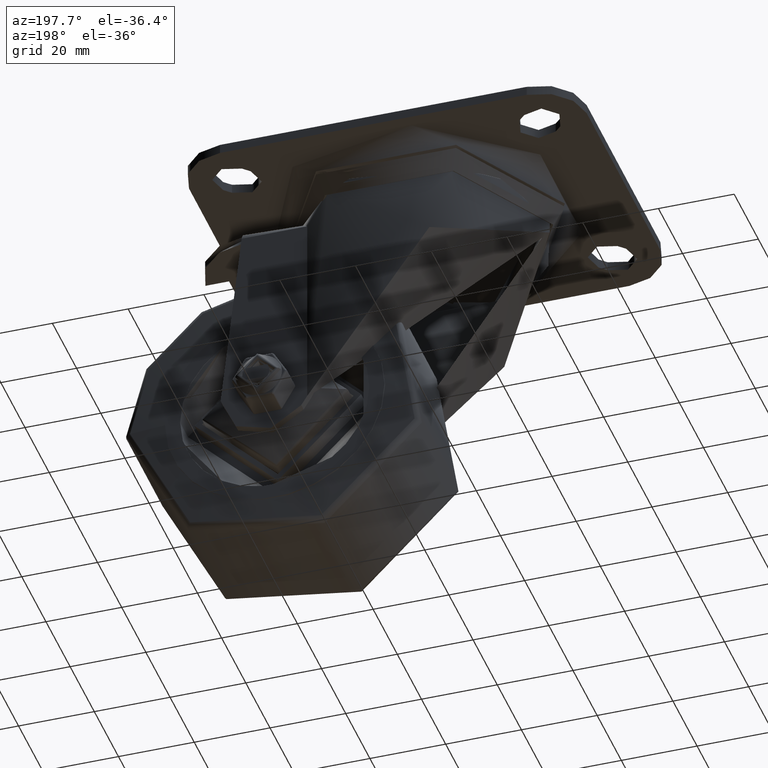
[diagram: clean part render]
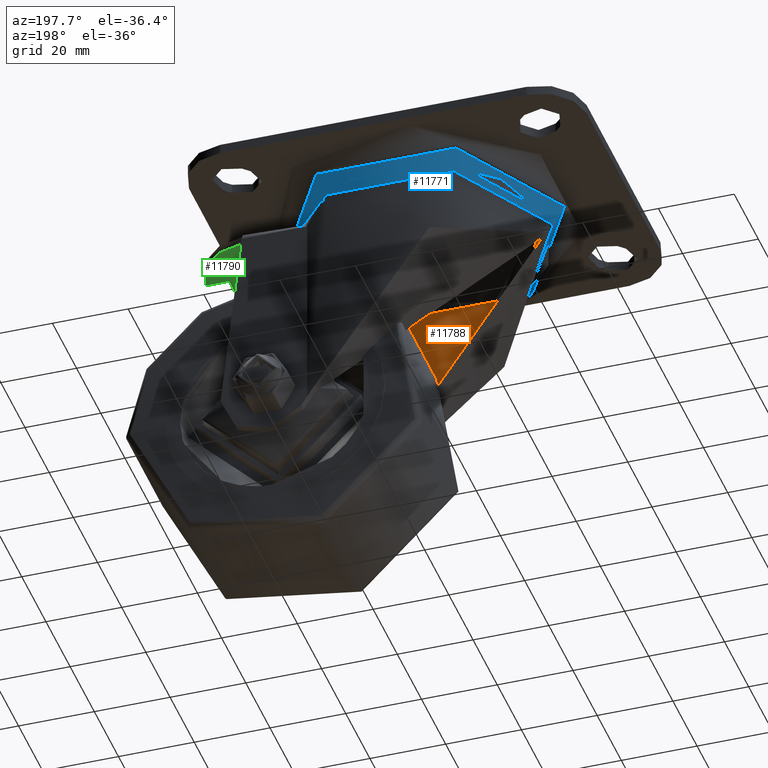
[diagram: same view with three faces highlighted in distinct colors, each labeled with its STEP entity id]
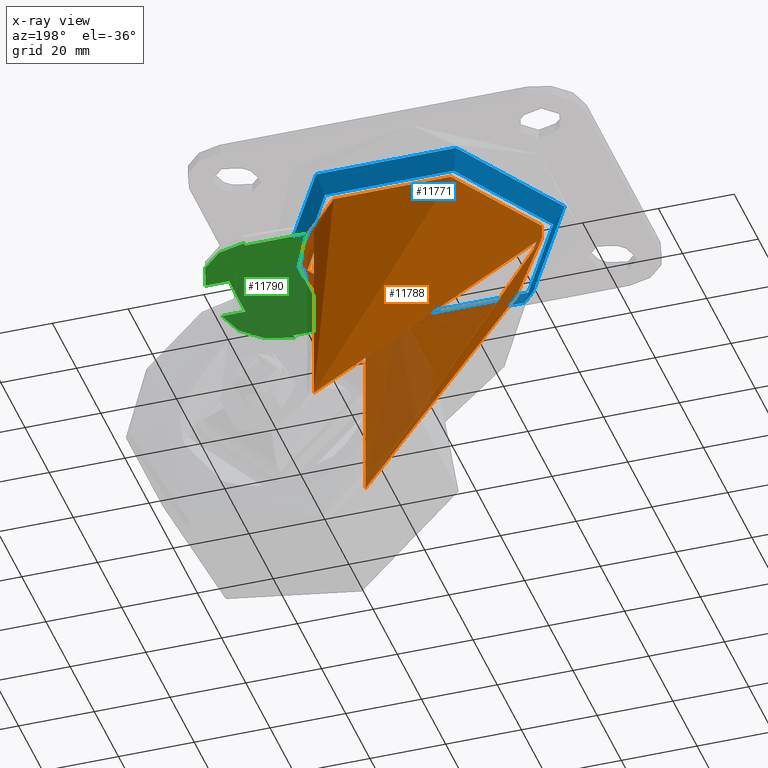
[diagram: x-ray of the same camera — body ghosted, the three highlighted faces saturated]
A machine part, auxiliary view with three faces highlighted in distinct colors.
The next image is the same camera in x-ray (body ghosted, the three faces saturated) — at least one of them is partly hidden behind the body in this view.
Their STEP definitions:

[orange] entity #11788 — the highlighted cylindrical surface (bore or boss wall) has radius 31 mm, axis along (0, 0, 1).
#522=B_SPLINE_CURVE_WITH_KNOTS('',3,(#21549,#21550,#21551,#21552,#21553,
#21554),.UNSPECIFIED.,.F.,.F.,(4,1,1,4),(-0.366304927231957,-0.261646376594255,
-0.156987825956553,0.),.UNSPECIFIED.);
#525=B_SPLINE_CURVE_WITH_KNOTS('',3,(#21614,#21615,#21616,#21617,#21618,
#21619),.UNSPECIFIED.,.F.,.F.,(4,1,1,4),(-0.366301003545455,-0.156986144376624,
-0.104657429584416,0.),.UNSPECIFIED.);
#527=B_SPLINE_CURVE_WITH_KNOTS('',3,(#21643,#21644,#21645,#21646,#21647,
#21648,#21649,#21650,#21651,#21652,#21653,#21654,#21655,#21656,#21657,#21658,
#21659,#21660,#21661,#21662,#21663,#21664,#21665,#21666,#21667,#21668,#21669,
#21670,#21671,#21672,#21673,#21674,#21675,#21676,#21677,#21678,#21679,#21680,
#21681,#21682,#21683,#21684,#21685,#21686,#21687,#21688,#21689,#21690,#21691,
#21692),.UNSPECIFIED.,.F.,.F.,(4,2,2,2,2,2,2,2,2,2,2,2,2,2,2,2,2,2,2,2,
2,2,2,2,4),(2.79800494160239,3.45327079331287,4.41356335842869,5.37385592354451,
6.33414848866034,7.10178908057205,7.86942967248377,8.63707026439549,9.40471085630721,
9.97575357719239,10.5467962980776,11.1178390189627,11.6888817398479,12.2599244607331,
12.8309671816183,13.4020099025035,13.9730526233886,14.7406932153004,15.5083338072121,
16.2759743991238,17.0436149910355,18.0039075561513,18.9642001212672,19.924492686383,
20.579758635661),.UNSPECIFIED.);
#1924=FACE_OUTER_BOUND('',#2751,.T.);
#2751=EDGE_LOOP('',(#9864,#9865,#9866,#9867,#9868,#9869,#9870,#9871,#9872,
#9873,#9874));
#3478=LINE('',#21565,#4211);
#3481=LINE('',#21580,#4214);
#3484=LINE('',#21639,#4217);
#4211=VECTOR('',#15094,10.);
#4214=VECTOR('',#15101,10.);
#4217=VECTOR('',#15120,31.);
#4797=CIRCLE('',#12911,31.);
#4798=CIRCLE('',#12912,31.);
#4800=CIRCLE('',#12917,31.);
#4801=CIRCLE('',#12918,31.);
#5681=VERTEX_POINT('',#21546);
#5682=VERTEX_POINT('',#21548);
#5684=VERTEX_POINT('',#21558);
#5685=VERTEX_POINT('',#21568);
#5688=VERTEX_POINT('',#21578);
#5690=VERTEX_POINT('',#21612);
#5691=VERTEX_POINT('',#21627);
#5694=VERTEX_POINT('',#21638);
#5695=VERTEX_POINT('',#21640);
#7126=EDGE_CURVE('',#5681,#5682,#522,.T.);
#7129=EDGE_CURVE('',#5684,#5681,#3478,.T.);
#7134=EDGE_CURVE('',#5688,#5685,#3481,.T.);
#7136=EDGE_CURVE('',#5690,#5688,#525,.T.);
#7138=EDGE_CURVE('',#5682,#5691,#4797,.T.);
#7139=EDGE_CURVE('',#5691,#5690,#4798,.T.);
#7144=EDGE_CURVE('',#5691,#5694,#3484,.T.);
#7145=EDGE_CURVE('',#5695,#5694,#4800,.T.);
#7146=EDGE_CURVE('',#5694,#5695,#4801,.T.);
#7147=EDGE_CURVE('',#5684,#5685,#527,.F.);
#9864=ORIENTED_EDGE('',*,*,#7134,.F.);
#9865=ORIENTED_EDGE('',*,*,#7136,.F.);
#9866=ORIENTED_EDGE('',*,*,#7139,.F.);
#9867=ORIENTED_EDGE('',*,*,#7144,.T.);
#9868=ORIENTED_EDGE('',*,*,#7145,.F.);
#9869=ORIENTED_EDGE('',*,*,#7146,.F.);
#9870=ORIENTED_EDGE('',*,*,#7144,.F.);
#9871=ORIENTED_EDGE('',*,*,#7138,.F.);
#9872=ORIENTED_EDGE('',*,*,#7126,.F.);
#9873=ORIENTED_EDGE('',*,*,#7129,.F.);
#9874=ORIENTED_EDGE('',*,*,#7147,.T.);
#11238=CYLINDRICAL_SURFACE('',#12916,31.);
#11788=ADVANCED_FACE('',(#1924),#11238,.F.);
#12911=AXIS2_PLACEMENT_3D('',#21628,#15106,#15107);
#12912=AXIS2_PLACEMENT_3D('',#21629,#15108,#15109);
#12916=AXIS2_PLACEMENT_3D('',#21637,#15118,#15119);
#12917=AXIS2_PLACEMENT_3D('',#21641,#15121,#15122);
#12918=AXIS2_PLACEMENT_3D('',#21642,#15123,#15124);
#15094=DIRECTION('',(0.,0.,1.));
#15101=DIRECTION('',(0.,0.,-1.));
#15106=DIRECTION('center_axis',(0.,0.,1.));
#15107=DIRECTION('ref_axis',(0.999768729678008,-0.0215055145956323,0.));
#15108=DIRECTION('center_axis',(0.,0.,1.));
#15109=DIRECTION('ref_axis',(0.999768729678008,-0.0215055145956323,0.));
#15118=DIRECTION('center_axis',(0.,0.,1.));
#15119=DIRECTION('ref_axis',(-1.,0.,0.));
#15120=DIRECTION('',(0.,0.,1.));
#15121=DIRECTION('center_axis',(0.,0.,-1.));
#15122=DIRECTION('ref_axis',(-1.,0.,0.));
#15123=DIRECTION('center_axis',(0.,0.,-1.));
#15124=DIRECTION('ref_axis',(-1.,0.,0.));
#21546=CARTESIAN_POINT('',(22.5117156998306,-21.3125,-16.5));
#21548=CARTESIAN_POINT('',(24.1993672437938,-19.375,-14.5));
#21549=CARTESIAN_POINT('Ctrl Pts',(22.5117156998306,-21.3125,-16.5));
#21550=CARTESIAN_POINT('Ctrl Pts',(22.5117156998306,-21.3125,-16.1511381645411));
#21551=CARTESIAN_POINT('Ctrl Pts',(22.6939761918626,-21.1214889516361,-15.4716051280992));
#21552=CARTESIAN_POINT('Ctrl Pts',(23.3377848616503,-20.4157894463129,-14.7046781625733));
#21553=CARTESIAN_POINT('Ctrl Pts',(23.8825298346367,-19.7707297972008,-14.5));
#21554=CARTESIAN_POINT('Ctrl Pts',(24.1993672437938,-19.375,-14.5));
#21558=CARTESIAN_POINT('',(22.5117156998306,-21.3125,-66.6746183290521));
#21565=CARTESIAN_POINT('',(22.5117156998306,-21.3125,-76.5));
#21568=CARTESIAN_POINT('',(22.5117156998306,21.3125,-66.6746183290522));
#21578=CARTESIAN_POINT('',(22.5117156998306,21.3125,-16.5));
#21580=CARTESIAN_POINT('',(22.5117156998306,21.3125,-76.5));
#21612=CARTESIAN_POINT('',(24.1993672437923,19.3750000000019,-14.5));
#21614=CARTESIAN_POINT('Ctrl Pts',(24.1993672437923,19.3750000000019,-14.5));
#21615=CARTESIAN_POINT('Ctrl Pts',(23.776921890001,19.9026340777737,-14.5000000000005));
#21616=CARTESIAN_POINT('Ctrl Pts',(23.2162639399819,20.5517197214548,-14.7706150732884));
#21617=CARTESIAN_POINT('Ctrl Pts',(22.6449212854271,21.1723927482741,-15.6408814520903));
#21618=CARTESIAN_POINT('Ctrl Pts',(22.5117156998306,21.3125,-16.1511419013852));
#21619=CARTESIAN_POINT('Ctrl Pts',(22.5117156998307,21.3125,-16.5));
#21627=CARTESIAN_POINT('',(31.,3.7964050773568E-15,-14.5));
#21628=CARTESIAN_POINT('Origin',(6.93889390390723E-15,0.,-14.5));
#21629=CARTESIAN_POINT('Origin',(6.93889390390723E-15,0.,-14.5));
#21637=CARTESIAN_POINT('Origin',(6.93889390390723E-15,0.,-76.5));
#21638=CARTESIAN_POINT('',(31.,-3.79640507735679E-15,-11.5));
#21639=CARTESIAN_POINT('',(31.,3.7964050773568E-15,-76.5));
#21640=CARTESIAN_POINT('',(-31.,-3.7964050773568E-15,-11.5));
#21641=CARTESIAN_POINT('Origin',(6.93889390390723E-15,0.,-11.5));
#21642=CARTESIAN_POINT('Origin',(6.93889390390723E-15,0.,-11.5));
#21643=CARTESIAN_POINT('Ctrl Pts',(22.5117156998306,21.3125,-66.6746183290522));
#21644=CARTESIAN_POINT('Ctrl Pts',(21.4532500960343,22.4305235425554,-65.0578062259421));
#21645=CARTESIAN_POINT('Ctrl Pts',(20.3111709516999,23.4699847966442,-63.3752417908497));
#21646=CARTESIAN_POINT('Ctrl Pts',(17.3123760571425,25.814751879271,-59.1400530999394));
#21647=CARTESIAN_POINT('Ctrl Pts',(15.3696232056898,27.0182382177668,-56.5474709480143));
#21648=CARTESIAN_POINT('Ctrl Pts',(11.2464070101123,28.9780735853506,-51.3851666750787));
#21649=CARTESIAN_POINT('Ctrl Pts',(9.06490452145309,29.7339230013996,-48.8144676786929));
#21650=CARTESIAN_POINT('Ctrl Pts',(4.58253710361373,30.7453902973672,-43.8474473419471));
#21651=CARTESIAN_POINT('Ctrl Pts',(2.28155620506681,31.,-41.4510254058555));
#21652=CARTESIAN_POINT('Ctrl Pts',(-1.823834963802,31.,-37.4111248340499));
#21653=CARTESIAN_POINT('Ctrl Pts',(-3.76817083024062,30.8369706647622,-35.5828080243421));
#21654=CARTESIAN_POINT('Ctrl Pts',(-7.75595412377786,30.0826037267597,-32.0149506508458));
#21655=CARTESIAN_POINT('Ctrl Pts',(-9.79932559745162,29.4908328732966,-30.2754168117049));
#21656=CARTESIAN_POINT('Ctrl Pts',(-13.8235094850245,27.8324753238633,-27.0071525129987));
#21657=CARTESIAN_POINT('Ctrl Pts',(-15.8066244800044,26.7643932521718,-25.476139402578));
#21658=CARTESIAN_POINT('Ctrl Pts',(-19.5467716360171,24.168281751834,-22.7059224012732));
#21659=CARTESIAN_POINT('Ctrl Pts',(-21.3033227315613,22.6399713352705,-21.4663323800295));
#21660=CARTESIAN_POINT('Ctrl Pts',(-24.0387504732261,19.6501052521614,-19.5981626258782));
#21661=CARTESIAN_POINT('Ctrl Pts',(-25.1643939714848,18.2017056867479,-18.8519167331473));
#21662=CARTESIAN_POINT('Ctrl Pts',(-27.1832706284687,15.0206062576484,-17.5425584417405));
#21663=CARTESIAN_POINT('Ctrl Pts',(-28.0762173349252,13.2878704630561,-16.9790917017134));
#21664=CARTESIAN_POINT('Ctrl Pts',(-29.5262156878812,9.6459410355561,-16.0767538961647));
#21665=CARTESIAN_POINT('Ctrl Pts',(-30.0845852287592,7.73305235219514,-15.7366648454094));
#21666=CARTESIAN_POINT('Ctrl Pts',(-30.8215607945174,3.86183344246917,-15.289866114576));
#21667=CARTESIAN_POINT('Ctrl Pts',(-31.,1.90347573628393,-15.1831193844125));
#21668=CARTESIAN_POINT('Ctrl Pts',(-31.,-1.90347573628393,-15.1831193844125));
#21669=CARTESIAN_POINT('Ctrl Pts',(-30.8215607945174,-3.86183344246917,
-15.289866114576));
#21670=CARTESIAN_POINT('Ctrl Pts',(-30.0845852287592,-7.73305235219514,
-15.7366648454094));
#21671=CARTESIAN_POINT('Ctrl Pts',(-29.5262156878812,-9.6459410355561,-16.0767538961647));
#21672=CARTESIAN_POINT('Ctrl Pts',(-28.0762173349252,-13.2878704630561,
-16.9790917017134));
#21673=CARTESIAN_POINT('Ctrl Pts',(-27.1832706284687,-15.0206062576484,
-17.5425584417405));
#21674=CARTESIAN_POINT('Ctrl Pts',(-25.1643939714848,-18.2017056867479,
-18.8519167331473));
#21675=CARTESIAN_POINT('Ctrl Pts',(-24.0387504732261,-19.6501052521614,
-19.5981626258782));
#21676=CARTESIAN_POINT('Ctrl Pts',(-21.3033227315613,-22.6399713352705,
-21.4663323800295));
#21677=CARTESIAN_POINT('Ctrl Pts',(-19.5467716360171,-24.168281751834,-22.7059224012733));
#21678=CARTESIAN_POINT('Ctrl Pts',(-15.8066244800044,-26.7643932521718,
-25.476139402578));
#21679=CARTESIAN_POINT('Ctrl Pts',(-13.8235094850245,-27.8324753238633,
-27.0071525129987));
#21680=CARTESIAN_POINT('Ctrl Pts',(-9.79932559745165,-29.4908328732966,
-30.2754168117049));
#21681=CARTESIAN_POINT('Ctrl Pts',(-7.75595412377788,-30.0826037267597,
-32.0149506508457));
#21682=CARTESIAN_POINT('Ctrl Pts',(-3.76817083024064,-30.8369706647622,
-35.5828080243421));
#21683=CARTESIAN_POINT('Ctrl Pts',(-1.823834963802,-31.,-37.4111248340498));
#21684=CARTESIAN_POINT('Ctrl Pts',(2.28155620506681,-31.,-41.4510254058555));
#21685=CARTESIAN_POINT('Ctrl Pts',(4.58253710361373,-30.7453902973672,-43.8474473419471));
#21686=CARTESIAN_POINT('Ctrl Pts',(9.0649045214531,-29.7339230013996,-48.8144676786929));
#21687=CARTESIAN_POINT('Ctrl Pts',(11.2464070101123,-28.9780735853506,-51.3851666750788));
#21688=CARTESIAN_POINT('Ctrl Pts',(15.3696232056898,-27.0182382177668,-56.5474709480143));
#21689=CARTESIAN_POINT('Ctrl Pts',(17.3123760571425,-25.814751879271,-59.1400530999394));
#21690=CARTESIAN_POINT('Ctrl Pts',(20.3111711328044,-23.469984655038,-63.3752420466231));
#21691=CARTESIAN_POINT('Ctrl Pts',(21.453249888313,-22.4305237619648,-65.0578059086467));
#21692=CARTESIAN_POINT('Ctrl Pts',(22.5117156998306,-21.3125,-66.6746183290521));

[blue] entity #11771 — the highlighted conical surface has half-angle 30.964 deg.
#1478=CONICAL_SURFACE('',#12880,35.4287464628563,0.540419500270583);
#1907=FACE_OUTER_BOUND('',#2734,.T.);
#2734=EDGE_LOOP('',(#9791,#9792,#9793,#9794));
#3459=LINE('',#21437,#4192);
#4192=VECTOR('',#15025,35.4287464628563);
#4786=CIRCLE('',#12879,33.9287464628563);
#4787=CIRCLE('',#12881,36.9287464628563);
#5655=VERTEX_POINT('',#21431);
#5656=VERTEX_POINT('',#21435);
#7090=EDGE_CURVE('',#5655,#5655,#4786,.T.);
#7091=EDGE_CURVE('',#5656,#5656,#4787,.T.);
#7092=EDGE_CURVE('',#5656,#5655,#3459,.T.);
#9791=ORIENTED_EDGE('',*,*,#7091,.T.);
#9792=ORIENTED_EDGE('',*,*,#7092,.T.);
#9793=ORIENTED_EDGE('',*,*,#7090,.F.);
#9794=ORIENTED_EDGE('',*,*,#7092,.F.);
#11771=ADVANCED_FACE('',(#1907),#1478,.T.);
#12879=AXIS2_PLACEMENT_3D('',#21433,#15019,#15020);
#12880=AXIS2_PLACEMENT_3D('',#21434,#15021,#15022);
#12881=AXIS2_PLACEMENT_3D('',#21436,#15023,#15024);
#15019=DIRECTION('center_axis',(0.,0.,-1.));
#15020=DIRECTION('ref_axis',(-1.,0.,0.));
#15021=DIRECTION('center_axis',(0.,0.,1.));
#15022=DIRECTION('ref_axis',(-1.,0.,0.));
#15023=DIRECTION('center_axis',(0.,0.,-1.));
#15024=DIRECTION('ref_axis',(-1.,0.,0.));
#15025=DIRECTION('',(-0.514495755427526,-6.30075580059219E-17,-0.857492925712545));
#21431=CARTESIAN_POINT('',(33.9287464628563,4.1550730754819E-15,-11.7572478777138));
#21433=CARTESIAN_POINT('Origin',(0.,0.,-11.7572478777138));
#21434=CARTESIAN_POINT('Origin',(0.,0.,-9.25724787771376));
#21435=CARTESIAN_POINT('',(36.9287464628563,4.52246711522611E-15,-6.75724787771375));
#21436=CARTESIAN_POINT('Origin',(0.,0.,-6.75724787771375));
#21437=CARTESIAN_POINT('',(35.4287464628563,4.33877009535401E-15,-9.25724787771376));

[green] entity #11790 — the highlighted planar face has unit normal (0, 0, 1).
#1294=PLANE('',#12923);
#1926=FACE_OUTER_BOUND('',#2754,.T.);
#2754=EDGE_LOOP('',(#9881,#9882,#9883,#9884,#9885,#9886,#9887,#9888,#9889,
#9890));
#3464=LINE('',#21452,#4197);
#3470=LINE('',#21477,#4203);
#3473=LINE('',#21481,#4206);
#3474=LINE('',#21498,#4207);
#3483=LINE('',#21636,#4216);
#3486=LINE('',#21702,#4219);
#3487=LINE('',#21703,#4220);
#4197=VECTOR('',#15040,10.);
#4203=VECTOR('',#15064,10.);
#4206=VECTOR('',#15069,10.);
#4207=VECTOR('',#15080,10.);
#4216=VECTOR('',#15117,10.);
#4219=VECTOR('',#15136,10.);
#4220=VECTOR('',#15137,10.);
#4790=CIRCLE('',#12890,14.9197501826255);
#4791=CIRCLE('',#12893,14.9197501826255);
#4799=CIRCLE('',#12913,32.);
#5660=VERTEX_POINT('',#21449);
#5661=VERTEX_POINT('',#21451);
#5663=VERTEX_POINT('',#21456);
#5665=VERTEX_POINT('',#21463);
#5667=VERTEX_POINT('',#21466);
#5671=VERTEX_POINT('',#21476);
#5674=VERTEX_POINT('',#21497);
#5680=VERTEX_POINT('',#21539);
#5689=VERTEX_POINT('',#21611);
#5692=VERTEX_POINT('',#21632);
#7098=EDGE_CURVE('',#5661,#5660,#3464,.T.);
#7103=EDGE_CURVE('',#5663,#5661,#4790,.T.);
#7105=EDGE_CURVE('',#5667,#5665,#4791,.T.);
#7110=EDGE_CURVE('',#5671,#5667,#3470,.T.);
#7113=EDGE_CURVE('',#5660,#5671,#3473,.T.);
#7118=EDGE_CURVE('',#5663,#5674,#3474,.T.);
#7140=EDGE_CURVE('',#5689,#5680,#4799,.T.);
#7143=EDGE_CURVE('',#5680,#5692,#3483,.T.);
#7152=EDGE_CURVE('',#5674,#5689,#3486,.T.);
#7153=EDGE_CURVE('',#5692,#5665,#3487,.T.);
#9881=ORIENTED_EDGE('',*,*,#7140,.F.);
#9882=ORIENTED_EDGE('',*,*,#7152,.F.);
#9883=ORIENTED_EDGE('',*,*,#7118,.F.);
#9884=ORIENTED_EDGE('',*,*,#7103,.T.);
#9885=ORIENTED_EDGE('',*,*,#7098,.T.);
#9886=ORIENTED_EDGE('',*,*,#7113,.T.);
#9887=ORIENTED_EDGE('',*,*,#7110,.T.);
#9888=ORIENTED_EDGE('',*,*,#7105,.T.);
#9889=ORIENTED_EDGE('',*,*,#7153,.F.);
#9890=ORIENTED_EDGE('',*,*,#7143,.F.);
#11790=ADVANCED_FACE('',(#1926),#1294,.F.);
#12890=AXIS2_PLACEMENT_3D('',#21461,#15049,#15050);
#12893=AXIS2_PLACEMENT_3D('',#21467,#15055,#15056);
#12913=AXIS2_PLACEMENT_3D('',#21630,#15110,#15111);
#12923=AXIS2_PLACEMENT_3D('',#21701,#15134,#15135);
#15040=DIRECTION('',(-1.,-2.66453525910038E-15,0.));
#15049=DIRECTION('center_axis',(0.,0.,-1.));
#15050=DIRECTION('ref_axis',(0.998991928031898,0.0448901740597171,0.));
#15055=DIRECTION('center_axis',(0.,0.,-1.));
#15056=DIRECTION('ref_axis',(1.01201648486618E-14,-1.,0.));
#15064=DIRECTION('',(1.,3.73034936274053E-15,0.));
#15069=DIRECTION('',(2.63163976207444E-15,-1.,0.));
#15080=DIRECTION('',(3.87577285287664E-16,-1.,0.));
#15110=DIRECTION('center_axis',(0.,0.,-1.));
#15111=DIRECTION('ref_axis',(0.999768729678008,-0.0215055145956323,0.));
#15117=DIRECTION('',(1.,0.,0.));
#15134=DIRECTION('center_axis',(0.,0.,1.));
#15135=DIRECTION('ref_axis',(0.,1.,0.));
#15136=DIRECTION('',(-1.,-7.75154570575329E-16,0.));
#15137=DIRECTION('',(3.87577285287664E-16,-1.,0.));
#21449=CARTESIAN_POINT('',(49.5,6.75000000000005,-15.5));
#21451=CARTESIAN_POINT('',(55.75,6.75000000000006,-15.5));
#21452=CARTESIAN_POINT('',(49.5,6.75000000000005,-15.5));
#21456=CARTESIAN_POINT('',(41.,20.9991978475688,-15.5));
#21461=CARTESIAN_POINT('Origin',(40.8452899993047,6.08024981737451,-15.5));
#21463=CARTESIAN_POINT('',(41.,-20.9991978475688,-15.5));
#21466=CARTESIAN_POINT('',(55.75,-6.74999999999993,-15.5));
#21467=CARTESIAN_POINT('Origin',(40.8452899993047,-6.08024981737448,-15.5));
#21476=CARTESIAN_POINT('',(49.5,-6.74999999999995,-15.5));
#21477=CARTESIAN_POINT('',(49.5,-6.74999999999995,-15.5));
#21481=CARTESIAN_POINT('',(49.5,4.68404675090589E-14,-15.5));
#21497=CARTESIAN_POINT('',(40.9999999999999,20.,-15.5));
#21498=CARTESIAN_POINT('',(41.,11.,-15.5));
#21539=CARTESIAN_POINT('',(24.9799919935936,-20.,-15.5));
#21611=CARTESIAN_POINT('',(24.9799919935921,20.0000000000005,-15.5));
#21630=CARTESIAN_POINT('Origin',(6.93889390390723E-15,0.,-15.5));
#21632=CARTESIAN_POINT('',(40.9999999999999,-20.,-15.5));
#21636=CARTESIAN_POINT('',(65.76,-20.,-15.5));
#21701=CARTESIAN_POINT('Origin',(65.76,-6.93889390390723E-15,-15.5));
#21702=CARTESIAN_POINT('',(65.76,20.,-15.5));
#21703=CARTESIAN_POINT('',(41.,-11.,-15.5));